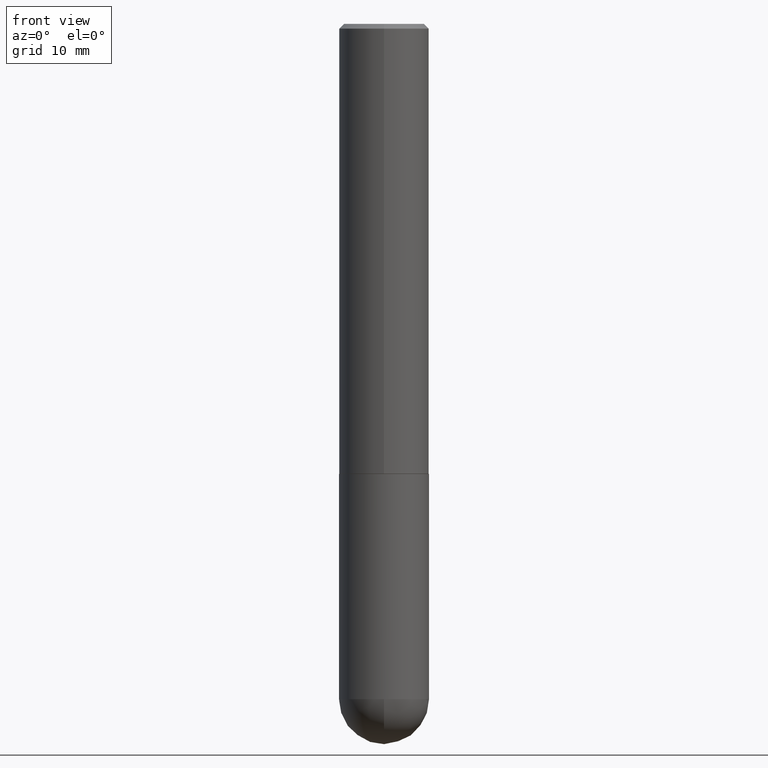
[diagram: clean part render]
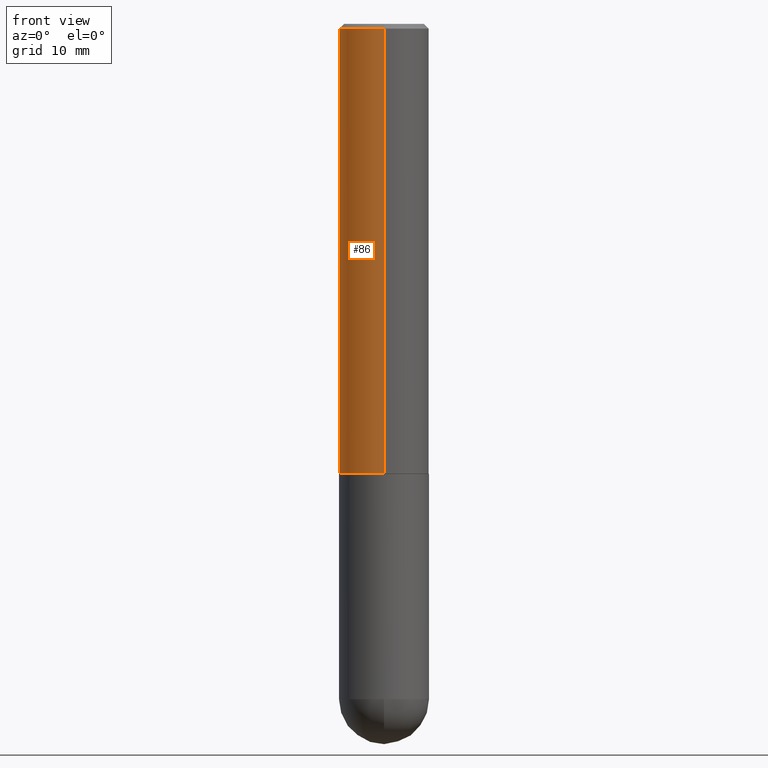
[diagram: same view with one face highlighted and labeled with its STEP entity id]
A machine part, front view. The second image highlights one B-rep face of the part: STEP entity #86.
In plain terms, the highlighted cylindrical surface (partial cylindrical patch) has radius 4.7625 mm, axis along (-0, 0, 1).
Its self-contained STEP definition (entity closure, byte-faithful):
#1 = CARTESIAN_POINT ( 'NONE',  ( 4.889506548922472903E-31, -6.985012041994642398E-17, -0.02000000000000004205 ) ) ;
#12 = DIRECTION ( 'NONE',  ( -6.982962677686266711E-15, -1.000000000000000000, 3.492506020997314198E-15 ) ) ;
#15 = CIRCLE ( 'NONE', #148, 0.1875000000000002498 ) ;
#18 = LINE ( 'NONE', #149, #41 ) ;
#25 = CARTESIAN_POINT ( 'NONE',  ( 4.581467636340347610E-29, -6.544956283348966620E-15, -1.874000000000000110 ) ) ;
#41 = VECTOR ( 'NONE', #368, 39.37007874015748143 ) ;
#47 = DIRECTION ( 'NONE',  ( -2.444753274461231407E-29, 3.492506020997314198E-15, 1.000000000000000000 ) ) ;
#59 = DIRECTION ( 'NONE',  ( -6.982962677686266711E-15, -1.000000000000000000, 2.913971193241876822E-15 ) ) ;
#81 = EDGE_LOOP ( 'NONE', ( #169, #227, #245, #400 ) ) ;
#86 = ADVANCED_FACE ( 'NONE', ( #409 ), #126, .T. ) ;
#88 = DIRECTION ( 'NONE',  ( -2.444753274461231687E-29, 3.492506020997314198E-15, 1.000000000000000000 ) ) ;
#89 = CIRCLE ( 'NONE', #395, 0.1875000000000000555 ) ;
#92 = EDGE_CURVE ( 'NONE', #312, #102, #391, .T. ) ;
#102 = VERTEX_POINT ( 'NONE', #330 ) ;
#110 = EDGE_CURVE ( 'NONE', #312, #272, #15, .T. ) ;
#126 = CYLINDRICAL_SURFACE ( 'NONE', #320, 0.1875000000000001388 ) ;
#141 = DIRECTION ( 'NONE',  ( -2.444753274461231407E-29, 3.492506020997314198E-15, 1.000000000000000000 ) ) ;
#142 = EDGE_CURVE ( 'NONE', #272, #195, #18, .T. ) ;
#144 = DIRECTION ( 'NONE',  ( -2.444753274461231407E-29, 3.492506020997314198E-15, 1.000000000000000000 ) ) ;
#148 = AXIS2_PLACEMENT_3D ( 'NONE', #25, #144, #59 ) ;
#149 = CARTESIAN_POINT ( 'NONE',  ( -1.309305502066175994E-15, -0.1875000000000001388, 6.548448789369969298E-16 ) ) ;
#153 = VECTOR ( 'NONE', #88, 39.37007874015748143 ) ;
#169 = ORIENTED_EDGE ( 'NONE', *, *, #92, .F. ) ;
#195 = VERTEX_POINT ( 'NONE', #358 ) ;
#199 = EDGE_CURVE ( 'NONE', #102, #195, #89, .T. ) ;
#200 = CARTESIAN_POINT ( 'NONE',  ( 1.332267629550212500E-15, 0.1874999999999936995, -1.874000000000000554 ) ) ;
#227 = ORIENTED_EDGE ( 'NONE', *, *, #110, .T. ) ;
#228 = DIRECTION ( 'NONE',  ( -6.982962677686265922E-15, -1.000000000000000000, 3.483106191921934371E-15 ) ) ;
#245 = ORIENTED_EDGE ( 'NONE', *, *, #142, .T. ) ;
#270 = CARTESIAN_POINT ( 'NONE',  ( 1.332267629550188637E-15, 0.1875000000000001388, -6.548448789369969298E-16 ) ) ;
#272 = VERTEX_POINT ( 'NONE', #290 ) ;
#290 = CARTESIAN_POINT ( 'NONE',  ( -1.309305502066130832E-15, -0.1875000000000068001, -1.873999999999999444 ) ) ;
#296 = CARTESIAN_POINT ( 'NONE',  ( 0.000000000000000000, 0.000000000000000000, 0.000000000000000000 ) ) ;
#312 = VERTEX_POINT ( 'NONE', #200 ) ;
#320 = AXIS2_PLACEMENT_3D ( 'NONE', #296, #47, #12 ) ;
#330 = CARTESIAN_POINT ( 'NONE',  ( 1.309305502066175797E-15, 0.1874999999999999722, -0.02000000000000069431 ) ) ;
#358 = CARTESIAN_POINT ( 'NONE',  ( -1.286343374582161774E-15, -0.1875000000000001110, -0.01999999999999938979 ) ) ;
#368 = DIRECTION ( 'NONE',  ( -2.444753274461231687E-29, 3.492506020997314198E-15, 1.000000000000000000 ) ) ;
#391 = LINE ( 'NONE', #270, #153 ) ;
#395 = AXIS2_PLACEMENT_3D ( 'NONE', #1, #141, #228 ) ;
#400 = ORIENTED_EDGE ( 'NONE', *, *, #199, .F. ) ;
#409 = FACE_OUTER_BOUND ( 'NONE', #81, .T. ) ;